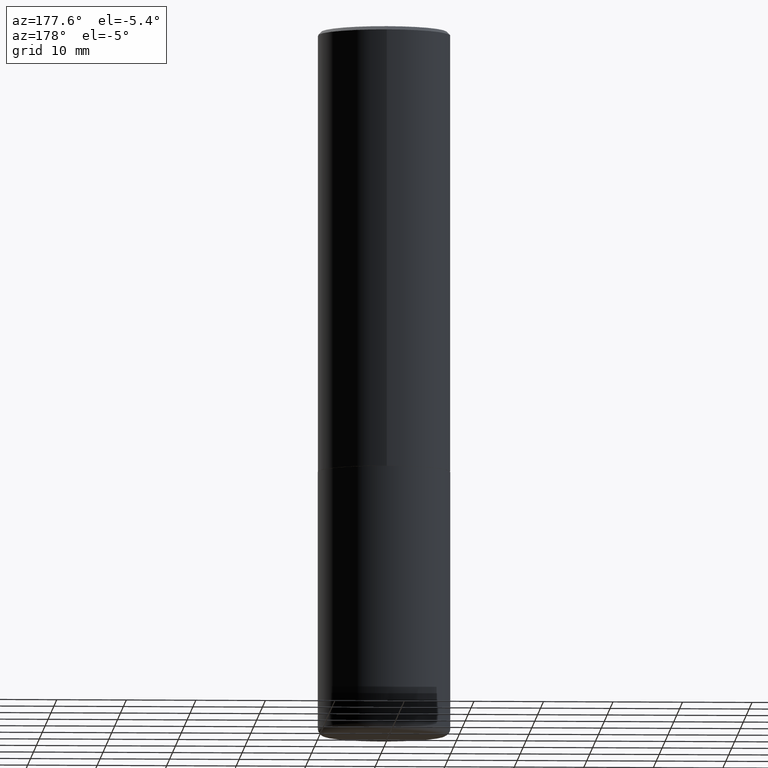
[diagram: clean part render]
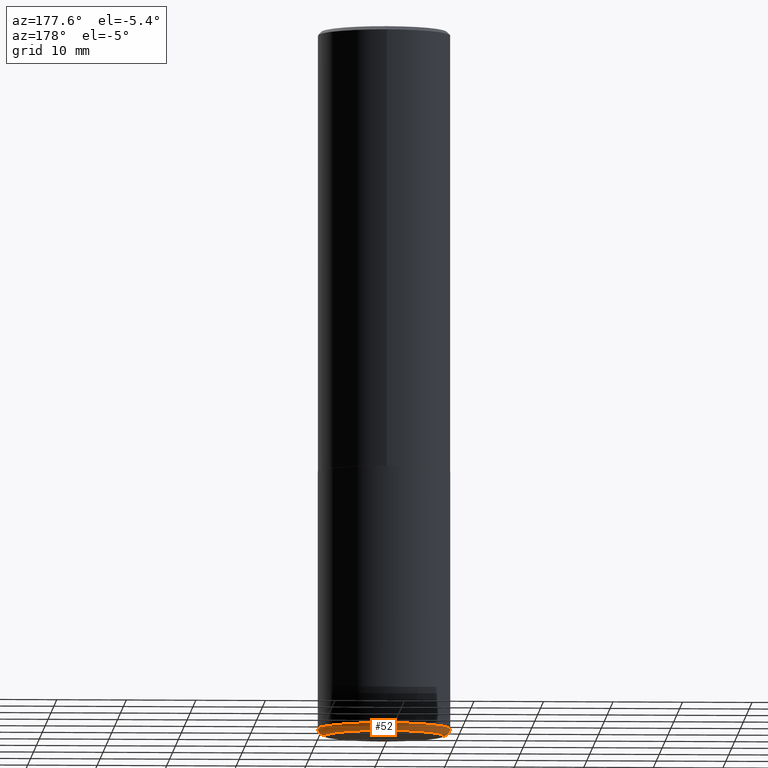
[diagram: same view with one face highlighted and labeled with its STEP entity id]
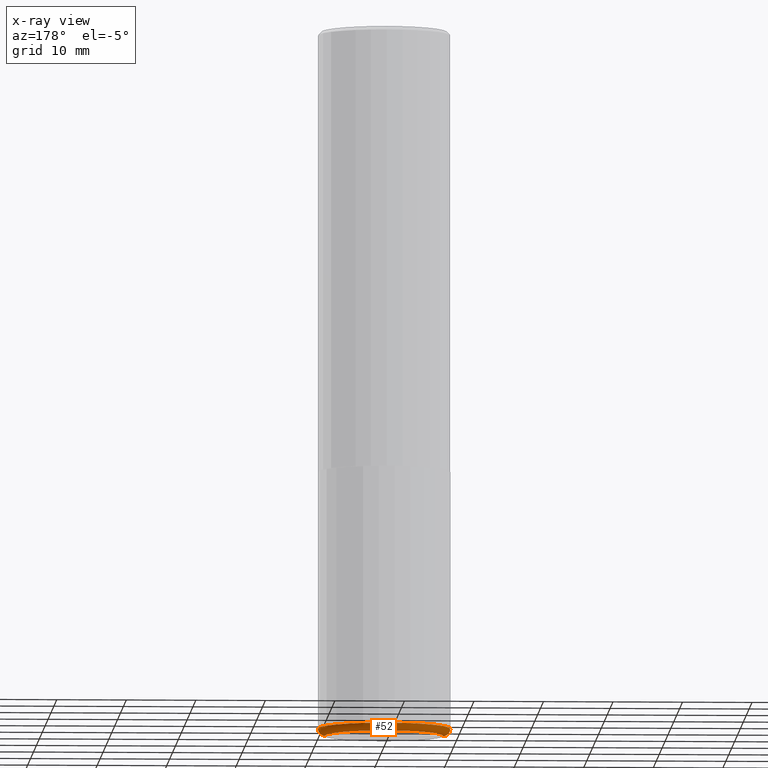
[diagram: x-ray of the same camera — body ghosted, the highlighted face saturated]
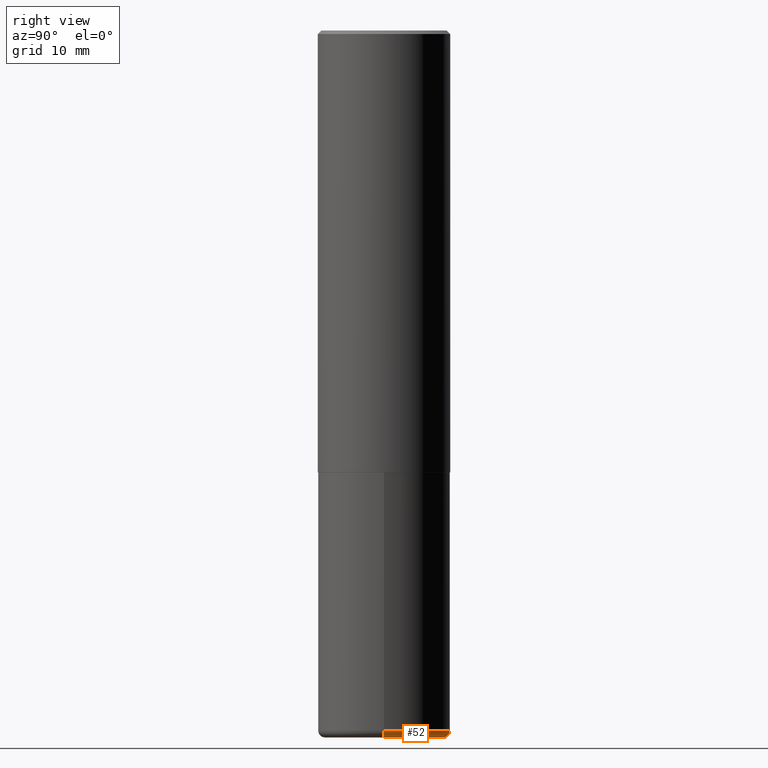
[diagram: same view with one face highlighted and labeled with its STEP entity id]
A machine part, auxiliary view. The second image highlights one B-rep face of the part: STEP entity #52.
The next image is the same camera in x-ray: the body ghosted, the highlighted face saturated — about 0% of this face is hidden behind the body in this view.
A second angle (right view) of the same face is appended — the face is thin or edge-on in the first view.
In plain terms, the highlighted toroidal blend (fillet) surface has major radius 8.509 mm and minor (blend) radius 1.016 mm.
Its self-contained STEP definition (entity closure, byte-faithful):
#31 = AXIS2_PLACEMENT_3D ( 'NONE', #33, #382, #349 ) ;
#33 = CARTESIAN_POINT ( 'NONE',  ( 9.684056472493140206E-29, -1.382626610181885573E-14, -3.959999999999999964 ) ) ;
#52 = ADVANCED_FACE ( 'NONE', ( #347 ), #159, .T. ) ;
#59 = VERTEX_POINT ( 'NONE', #63 ) ;
#63 = CARTESIAN_POINT ( 'NONE',  ( 0.3350000000000000200, -1.630521785239748073E-14, -4.000000000000000000 ) ) ;
#66 = EDGE_CURVE ( 'NONE', #276, #147, #82, .T. ) ;
#82 = CIRCLE ( 'NONE', #246, 0.04000000000000004940 ) ;
#85 = ORIENTED_EDGE ( 'NONE', *, *, #196, .T. ) ;
#88 = DIRECTION ( 'NONE',  ( 7.105427357601001859E-15, 1.000000000000000000, -3.491481338843145583E-15 ) ) ;
#97 = CARTESIAN_POINT ( 'NONE',  ( 0.3350000000000000200, -1.616555859884375414E-14, -3.959999999999999964 ) ) ;
#98 = AXIS2_PLACEMENT_3D ( 'NONE', #294, #201, #138 ) ;
#99 = DIRECTION ( 'NONE',  ( 1.000000000000000000, -6.982962677686265922E-15, 0.000000000000000000 ) ) ;
#126 = CARTESIAN_POINT ( 'NONE',  ( -0.3350000000000000200, -1.144594793702251879E-14, -3.959999999999999964 ) ) ;
#138 = DIRECTION ( 'NONE',  ( 1.000000000000000000, -6.982962677686269077E-15, 0.000000000000000000 ) ) ;
#145 = ORIENTED_EDGE ( 'NONE', *, *, #66, .T. ) ;
#147 = VERTEX_POINT ( 'NONE', #162 ) ;
#159 = TOROIDAL_SURFACE ( 'NONE', #31, 0.3350000000000000200, 0.04000000000000001471 ) ;
#162 = CARTESIAN_POINT ( 'NONE',  ( -0.3750000000000000555, -1.116173084271848004E-14, -3.959999999999999964 ) ) ;
#163 = DIRECTION ( 'NONE',  ( -1.000000000000000000, 7.105427357601014480E-15, 0.000000000000000000 ) ) ;
#191 = CARTESIAN_POINT ( 'NONE',  ( 9.781875224740546387E-29, -1.396592535537258233E-14, -4.000000000000000000 ) ) ;
#195 = CARTESIAN_POINT ( 'NONE',  ( -0.3350000000000000200, -1.137366901664736350E-14, -4.000000000000000000 ) ) ;
#196 = EDGE_CURVE ( 'NONE', #59, #276, #253, .T. ) ;
#199 = EDGE_LOOP ( 'NONE', ( #85, #145, #273, #300 ) ) ;
#201 = DIRECTION ( 'NONE',  ( -2.445468806185136597E-29, 3.491481338843145583E-15, 1.000000000000000000 ) ) ;
#212 = CIRCLE ( 'NONE', #317, 0.04000000000000004940 ) ;
#246 = AXIS2_PLACEMENT_3D ( 'NONE', #126, #88, #163 ) ;
#253 = CIRCLE ( 'NONE', #303, 0.3350000000000000200 ) ;
#268 = CARTESIAN_POINT ( 'NONE',  ( 0.3750000000000000555, -1.644487710595120733E-14, -3.959999999999999964 ) ) ;
#273 = ORIENTED_EDGE ( 'NONE', *, *, #274, .F. ) ;
#274 = EDGE_CURVE ( 'NONE', #373, #147, #415, .T. ) ;
#276 = VERTEX_POINT ( 'NONE', #195 ) ;
#292 = DIRECTION ( 'NONE',  ( -6.982962677686266711E-15, -1.000000000000000000, 3.491481338843145583E-15 ) ) ;
#294 = CARTESIAN_POINT ( 'NONE',  ( 9.684056472493140206E-29, -1.382626610181885573E-14, -3.959999999999999964 ) ) ;
#295 = DIRECTION ( 'NONE',  ( -2.445468806185136597E-29, 3.491481338843145583E-15, 1.000000000000000000 ) ) ;
#297 = EDGE_CURVE ( 'NONE', #59, #373, #212, .T. ) ;
#298 = DIRECTION ( 'NONE',  ( 1.000000000000000000, -6.982962677686275388E-15, 0.000000000000000000 ) ) ;
#300 = ORIENTED_EDGE ( 'NONE', *, *, #297, .F. ) ;
#303 = AXIS2_PLACEMENT_3D ( 'NONE', #191, #295, #99 ) ;
#317 = AXIS2_PLACEMENT_3D ( 'NONE', #97, #292, #298 ) ;
#347 = FACE_OUTER_BOUND ( 'NONE', #199, .T. ) ;
#349 = DIRECTION ( 'NONE',  ( 1.000000000000000000, -6.982962677686265922E-15, 4.883557194083113462E-29 ) ) ;
#373 = VERTEX_POINT ( 'NONE', #268 ) ;
#382 = DIRECTION ( 'NONE',  ( -2.445468806185136597E-29, 3.491481338843145583E-15, 1.000000000000000000 ) ) ;
#415 = CIRCLE ( 'NONE', #98, 0.3749999999999999445 ) ;